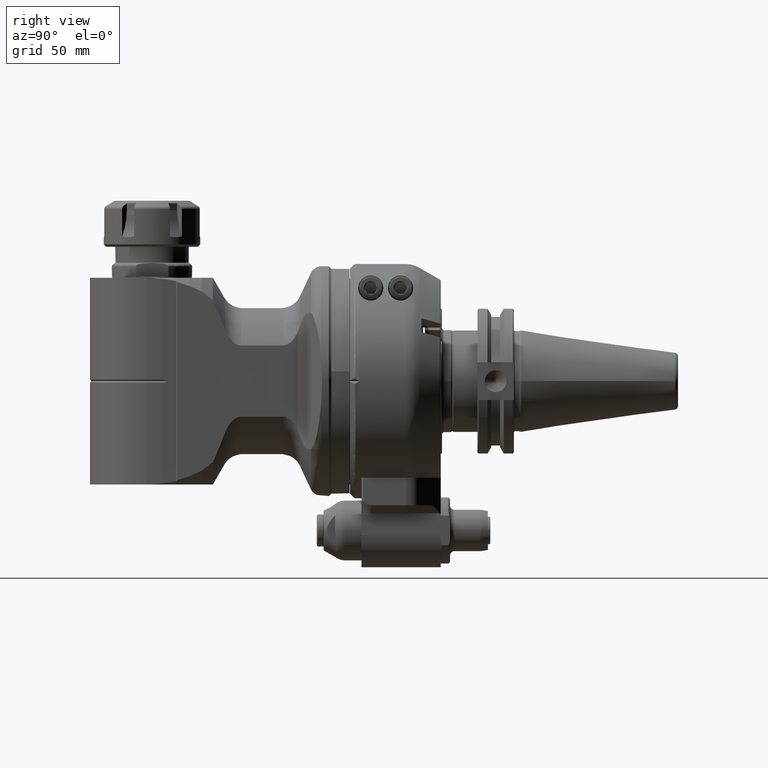
[diagram: clean part render]
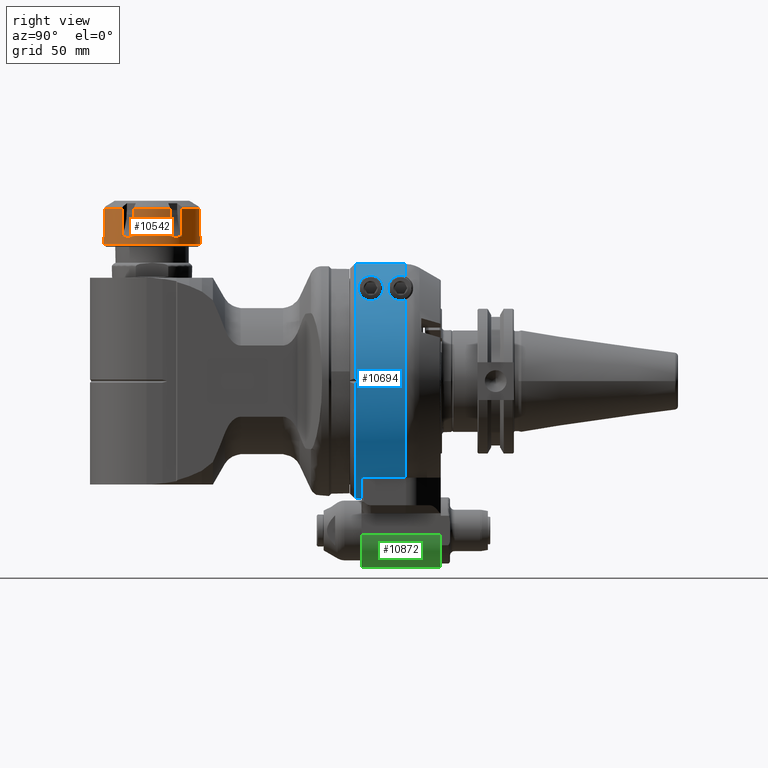
[diagram: same view with three faces highlighted in distinct colors, each labeled with its STEP entity id]
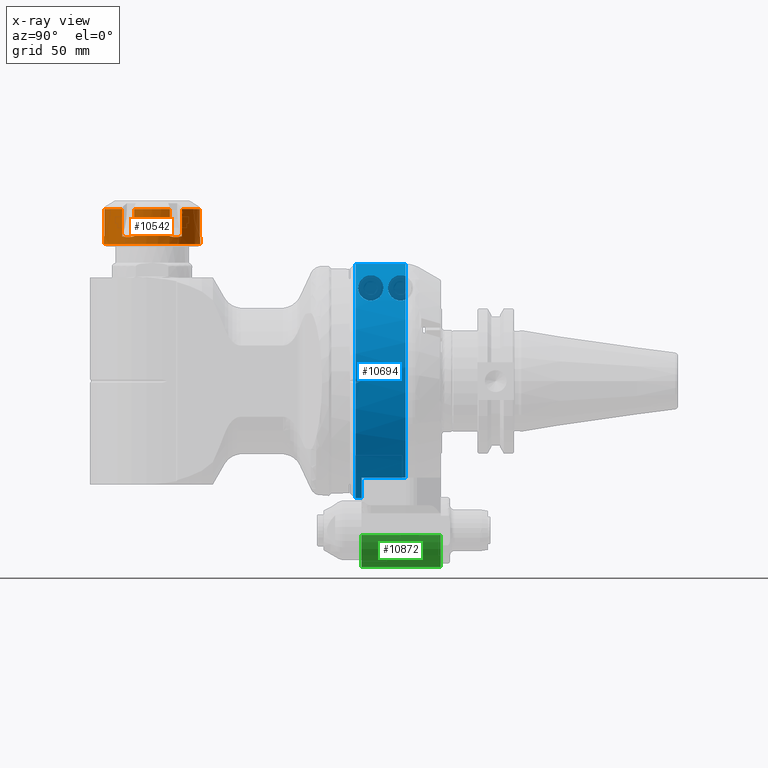
[diagram: x-ray of the same camera — body ghosted, the three highlighted faces saturated]
A machine part, right view with three faces highlighted in distinct colors.
The next image is the same camera in x-ray (body ghosted, the three faces saturated) — at least one of them is partly hidden behind the body in this view.
Their STEP definitions:

[orange] entity #10542 — the highlighted cylindrical surface (bore or boss wall) has radius 21 mm, axis along (0, -0, 1).
#488=B_SPLINE_CURVE_WITH_KNOTS('',3,(#16755,#16756,#16757,#16758,#16759,
#16760),.UNSPECIFIED.,.F.,.F.,(4,2,4),(2.87463116985803,2.88765206159068,
3.16316369067814),.UNSPECIFIED.);
#489=B_SPLINE_CURVE_WITH_KNOTS('',3,(#16768,#16769,#16770,#16771,#16772,
#16773,#16774,#16775,#16776,#16777),.UNSPECIFIED.,.F.,.F.,(4,2,2,2,4),(2.87463116985782,
2.8876520615906,3.16316369067809,3.43867531976558,3.45169621149917),
 .UNSPECIFIED.);
#490=B_SPLINE_CURVE_WITH_KNOTS('',3,(#16785,#16786,#16787,#16788,#16789,
#16790,#16791,#16792,#16793,#16794),.UNSPECIFIED.,.F.,.F.,(4,2,2,2,4),(-3.45169621149572,
-3.43867531976558,-3.16316369067809,-2.8876520615906,-2.87463116985796),
 .UNSPECIFIED.);
#491=B_SPLINE_CURVE_WITH_KNOTS('',3,(#16802,#16803,#16804,#16805,#16806,
#16807,#16808,#16809,#16810,#16811),.UNSPECIFIED.,.F.,.F.,(4,2,2,2,4),(2.87463116985816,
2.88765206159068,3.16316369067813,3.43867531976559,3.45169621149592),
 .UNSPECIFIED.);
#492=B_SPLINE_CURVE_WITH_KNOTS('',3,(#16819,#16820,#16821,#16822,#16823,
#16824,#16825,#16826,#16827,#16828),.UNSPECIFIED.,.F.,.F.,(4,2,2,2,4),(2.87463116985782,
2.8876520615906,3.16316369067809,3.43867531976558,3.45169621149847),
 .UNSPECIFIED.);
#493=B_SPLINE_CURVE_WITH_KNOTS('',3,(#16836,#16837,#16838,#16839,#16840,
#16841,#16842,#16843,#16844,#16845),.UNSPECIFIED.,.F.,.F.,(4,2,2,2,4),(2.87463116985701,
2.8876520615906,3.16316369067809,3.43867531976558,3.45169621149836),
 .UNSPECIFIED.);
#494=B_SPLINE_CURVE_WITH_KNOTS('',3,(#16852,#16853,#16854,#16855,#16856,
#16857),.UNSPECIFIED.,.F.,.F.,(4,2,4),(3.16316369067814,3.43867531976559,
3.45169621149824),.UNSPECIFIED.);
#637=CYLINDRICAL_SURFACE('',#11416,21.);
#884=CIRCLE('',#11415,21.);
#885=CIRCLE('',#11417,21.);
#886=CIRCLE('',#11418,21.);
#887=CIRCLE('',#11419,21.);
#888=CIRCLE('',#11420,21.);
#889=CIRCLE('',#11421,21.);
#890=CIRCLE('',#11422,21.);
#1480=FACE_OUTER_BOUND('',#2138,.T.);
#2138=EDGE_LOOP('',(#7274,#7275,#7276,#7277,#7278,#7279,#7280,#7281,#7282,
#7283,#7284,#7285,#7286,#7287,#7288,#7289,#7290,#7291,#7292,#7293,#7294,
#7295,#7296,#7297,#7298,#7299,#7300,#7301));
#2849=LINE('',#16762,#3538);
#2850=LINE('',#16766,#3539);
#2851=LINE('',#16779,#3540);
#2852=LINE('',#16783,#3541);
#2853=LINE('',#16796,#3542);
#2854=LINE('',#16800,#3543);
#2855=LINE('',#16813,#3544);
#2856=LINE('',#16817,#3545);
#2857=LINE('',#16830,#3546);
#2858=LINE('',#16834,#3547);
#2859=LINE('',#16847,#3548);
#2860=LINE('',#16851,#3549);
#2861=LINE('',#16858,#3550);
#3538=VECTOR('',#12979,11.85891834632);
#3539=VECTOR('',#12982,11.85891834642);
#3540=VECTOR('',#12983,11.85891834632);
#3541=VECTOR('',#12986,11.85891834642);
#3542=VECTOR('',#12987,11.85891834632);
#3543=VECTOR('',#12990,11.85891834642);
#3544=VECTOR('',#12991,11.85891834632);
#3545=VECTOR('',#12994,11.85891834642);
#3546=VECTOR('',#12995,11.85891834632);
#3547=VECTOR('',#12998,11.85891834642);
#3548=VECTOR('',#12999,11.85891834632);
#3549=VECTOR('',#13002,11.85891834642);
#3550=VECTOR('',#13003,21.);
#4329=VERTEX_POINT('',#16749);
#4330=VERTEX_POINT('',#16753);
#4331=VERTEX_POINT('',#16754);
#4332=VERTEX_POINT('',#16761);
#4333=VERTEX_POINT('',#16763);
#4334=VERTEX_POINT('',#16765);
#4335=VERTEX_POINT('',#16767);
#4336=VERTEX_POINT('',#16778);
#4337=VERTEX_POINT('',#16780);
#4338=VERTEX_POINT('',#16782);
#4339=VERTEX_POINT('',#16784);
#4340=VERTEX_POINT('',#16795);
#4341=VERTEX_POINT('',#16797);
#4342=VERTEX_POINT('',#16799);
#4343=VERTEX_POINT('',#16801);
#4344=VERTEX_POINT('',#16812);
#4345=VERTEX_POINT('',#16814);
#4346=VERTEX_POINT('',#16816);
#4347=VERTEX_POINT('',#16818);
#4348=VERTEX_POINT('',#16829);
#4349=VERTEX_POINT('',#16831);
#4350=VERTEX_POINT('',#16833);
#4351=VERTEX_POINT('',#16835);
#4352=VERTEX_POINT('',#16846);
#4353=VERTEX_POINT('',#16848);
#4354=VERTEX_POINT('',#16850);
#5451=EDGE_CURVE('',#4329,#4329,#884,.T.);
#5453=EDGE_CURVE('',#4330,#4331,#488,.T.);
#5454=EDGE_CURVE('',#4330,#4332,#2849,.T.);
#5455=EDGE_CURVE('',#4333,#4332,#885,.T.);
#5456=EDGE_CURVE('',#4333,#4334,#2850,.T.);
#5457=EDGE_CURVE('',#4335,#4334,#489,.T.);
#5458=EDGE_CURVE('',#4335,#4336,#2851,.T.);
#5459=EDGE_CURVE('',#4337,#4336,#886,.T.);
#5460=EDGE_CURVE('',#4337,#4338,#2852,.T.);
#5461=EDGE_CURVE('',#4338,#4339,#490,.T.);
#5462=EDGE_CURVE('',#4339,#4340,#2853,.T.);
#5463=EDGE_CURVE('',#4341,#4340,#887,.T.);
#5464=EDGE_CURVE('',#4341,#4342,#2854,.T.);
#5465=EDGE_CURVE('',#4343,#4342,#491,.T.);
#5466=EDGE_CURVE('',#4343,#4344,#2855,.T.);
#5467=EDGE_CURVE('',#4345,#4344,#888,.T.);
#5468=EDGE_CURVE('',#4345,#4346,#2856,.T.);
#5469=EDGE_CURVE('',#4347,#4346,#492,.T.);
#5470=EDGE_CURVE('',#4347,#4348,#2857,.T.);
#5471=EDGE_CURVE('',#4349,#4348,#889,.T.);
#5472=EDGE_CURVE('',#4349,#4350,#2858,.T.);
#5473=EDGE_CURVE('',#4351,#4350,#493,.T.);
#5474=EDGE_CURVE('',#4351,#4352,#2859,.T.);
#5475=EDGE_CURVE('',#4353,#4352,#890,.T.);
#5476=EDGE_CURVE('',#4353,#4354,#2860,.T.);
#5477=EDGE_CURVE('',#4331,#4354,#494,.T.);
#5478=EDGE_CURVE('',#4331,#4329,#2861,.T.);
#7274=ORIENTED_EDGE('',*,*,#5453,.F.);
#7275=ORIENTED_EDGE('',*,*,#5454,.T.);
#7276=ORIENTED_EDGE('',*,*,#5455,.F.);
#7277=ORIENTED_EDGE('',*,*,#5456,.T.);
#7278=ORIENTED_EDGE('',*,*,#5457,.F.);
#7279=ORIENTED_EDGE('',*,*,#5458,.T.);
#7280=ORIENTED_EDGE('',*,*,#5459,.F.);
#7281=ORIENTED_EDGE('',*,*,#5460,.T.);
#7282=ORIENTED_EDGE('',*,*,#5461,.T.);
#7283=ORIENTED_EDGE('',*,*,#5462,.T.);
#7284=ORIENTED_EDGE('',*,*,#5463,.F.);
#7285=ORIENTED_EDGE('',*,*,#5464,.T.);
#7286=ORIENTED_EDGE('',*,*,#5465,.F.);
#7287=ORIENTED_EDGE('',*,*,#5466,.T.);
#7288=ORIENTED_EDGE('',*,*,#5467,.F.);
#7289=ORIENTED_EDGE('',*,*,#5468,.T.);
#7290=ORIENTED_EDGE('',*,*,#5469,.F.);
#7291=ORIENTED_EDGE('',*,*,#5470,.T.);
#7292=ORIENTED_EDGE('',*,*,#5471,.F.);
#7293=ORIENTED_EDGE('',*,*,#5472,.T.);
#7294=ORIENTED_EDGE('',*,*,#5473,.F.);
#7295=ORIENTED_EDGE('',*,*,#5474,.T.);
#7296=ORIENTED_EDGE('',*,*,#5475,.F.);
#7297=ORIENTED_EDGE('',*,*,#5476,.T.);
#7298=ORIENTED_EDGE('',*,*,#5477,.F.);
#7299=ORIENTED_EDGE('',*,*,#5478,.T.);
#7300=ORIENTED_EDGE('',*,*,#5451,.F.);
#7301=ORIENTED_EDGE('',*,*,#5478,.F.);
#10542=ADVANCED_FACE('',(#1480),#637,.T.);
#11415=AXIS2_PLACEMENT_3D('',#16750,#12974,#12975);
#11416=AXIS2_PLACEMENT_3D('',#16752,#12977,#12978);
#11417=AXIS2_PLACEMENT_3D('',#16764,#12980,#12981);
#11418=AXIS2_PLACEMENT_3D('',#16781,#12984,#12985);
#11419=AXIS2_PLACEMENT_3D('',#16798,#12988,#12989);
#11420=AXIS2_PLACEMENT_3D('',#16815,#12992,#12993);
#11421=AXIS2_PLACEMENT_3D('',#16832,#12996,#12997);
#11422=AXIS2_PLACEMENT_3D('',#16849,#13000,#13001);
#12974=DIRECTION('center_axis',(0.,1.,0.));
#12975=DIRECTION('ref_axis',(1.,0.,0.));
#12977=DIRECTION('center_axis',(0.,-1.,0.));
#12978=DIRECTION('ref_axis',(-1.,0.,0.));
#12979=DIRECTION('',(-1.366092075366E-13,-1.,3.374037719038E-14));
#12980=DIRECTION('center_axis',(0.,-1.,0.));
#12981=DIRECTION('ref_axis',(0.618448856227896,0.,-0.785825051923395));
#12982=DIRECTION('',(1.497907977363E-12,1.,-1.611449402047E-12));
#12983=DIRECTION('',(-4.313974974841E-14,-1.,1.330142283909E-13));
#12984=DIRECTION('center_axis',(0.,-1.,0.));
#12985=DIRECTION('ref_axis',(-0.3713200297819,0.,-0.928504946396501));
#12986=DIRECTION('',(-6.506912253664E-13,1.,-2.101265310645E-12));
#12987=DIRECTION('',(9.346945778822E-14,-1.,1.024569056525E-13));
#12988=DIRECTION('center_axis',(0.,-1.,0.));
#12989=DIRECTION('ref_axis',(-0.989768886009832,0.,-0.142679894473105));
#12990=DIRECTION('',(-2.141409244438E-12,1.,-4.877188374293E-13));
#12991=DIRECTION('',(1.342125547728E-13,-1.,-3.029518884242E-14));
#12992=DIRECTION('center_axis',(0.,-1.,0.));
#12993=DIRECTION('ref_axis',(-0.618448856227896,0.,0.785825051923395));
#12994=DIRECTION('',(-1.494312998217E-12,1.,1.614145636406E-12));
#12995=DIRECTION('',(3.954477060271E-14,-1.,-1.333138099864E-13));
#12996=DIRECTION('center_axis',(0.,-1.,0.));
#12997=DIRECTION('ref_axis',(0.3713200297819,0.,0.928504946396501));
#12998=DIRECTION('',(6.518895517483E-13,1.,2.10486028979E-12));
#12999=DIRECTION('',(-9.826276331582E-14,-1.,-1.006594160796E-13));
#13000=DIRECTION('center_axis',(0.,-1.,0.));
#13001=DIRECTION('ref_axis',(0.989768886009832,0.,0.142679894473105));
#13002=DIRECTION('',(2.140210918056E-12,1.,4.847230214746E-13));
#13003=DIRECTION('',(0.,1.,0.));
#16749=CARTESIAN_POINT('',(111.,-59.50000042753,0.));
#16750=CARTESIAN_POINT('Origin',(90.,-59.50000042753,0.));
#16752=CARTESIAN_POINT('Origin',(90.,-68.50000042753,0.));
#16753=CARTESIAN_POINT('',(110.7851466062,-63.03264289878,-2.996277783935));
#16754=CARTESIAN_POINT('',(111.,-62.6256583404921,1.70221277333915E-15));
#16755=CARTESIAN_POINT('Ctrl Pts',(110.785146606206,-63.0326428987769,-2.99627778393676));
#16756=CARTESIAN_POINT('Ctrl Pts',(110.791588087868,-63.0201642985069,-2.95159329526259));
#16757=CARTESIAN_POINT('Ctrl Pts',(110.797897483794,-63.0079673405085,-2.90680446272994));
#16758=CARTESIAN_POINT('Ctrl Pts',(110.934713406163,-62.7439926974718,-1.91225557974211));
#16759=CARTESIAN_POINT('Ctrl Pts',(111.,-62.6256583404921,-0.91837209695819));
#16760=CARTESIAN_POINT('Ctrl Pts',(111.,-62.6256583404921,-8.32667268468867E-16));
#16761=CARTESIAN_POINT('',(110.7851466062,-74.8915612451,-2.996277783935));
#16762=CARTESIAN_POINT('',(110.7851466062,-63.03264289878,-2.996277783936));
#16763=CARTESIAN_POINT('',(102.9874259808,-74.8915612451,-16.50232609039));
#16764=CARTESIAN_POINT('Origin',(90.,-74.8915612451,0.));
#16765=CARTESIAN_POINT('',(102.9874259808,-63.03264289878,-16.50232609039));
#16766=CARTESIAN_POINT('',(102.9874259808,-74.8915612451,-16.50232609039));
#16767=CARTESIAN_POINT('',(97.79772062542,-63.03264289878,-19.49860387433));
#16768=CARTESIAN_POINT('Ctrl Pts',(97.7977206254178,-63.032642898776,-19.4986038743274));
#16769=CARTESIAN_POINT('Ctrl Pts',(97.839639268596,-63.0201642985058,-19.4818401167472));
#16770=CARTESIAN_POINT('Ctrl Pts',(97.8815822333384,-63.0079673405073,-19.4649097976349));
#16771=CARTESIAN_POINT('Ctrl Pts',(98.8112947924964,-62.7439926974704,-19.0861214205547));
#16772=CARTESIAN_POINT('Ctrl Pts',(99.7046664339077,-62.6256583404907,-18.6457195279522));
#16773=CARTESIAN_POINT('Ctrl Pts',(101.295333566093,-62.6256583404907,-17.7273474309938));
#16774=CARTESIAN_POINT('Ctrl Pts',(102.123418613667,-62.7439926974704,-17.1738658408123));
#16775=CARTESIAN_POINT('Ctrl Pts',(102.916315250458,-63.007967340508,-16.5581053349024));
#16776=CARTESIAN_POINT('Ctrl Pts',(102.951948819277,-63.0201642985073,-16.5302468214798));
#16777=CARTESIAN_POINT('Ctrl Pts',(102.987425980796,-63.0326428987783,-16.5023260903836));
#16778=CARTESIAN_POINT('',(97.79772062542,-74.8915612451,-19.49860387433));
#16779=CARTESIAN_POINT('',(97.79772062542,-63.03264289877,-19.49860387433));
#16780=CARTESIAN_POINT('',(82.20227937458,-74.8915612451,-19.49860387433));
#16781=CARTESIAN_POINT('Origin',(90.,-74.8915612451,0.));
#16782=CARTESIAN_POINT('',(82.20227937457,-63.03264289868,-19.49860387435));
#16783=CARTESIAN_POINT('',(82.20227937458,-74.8915612451,-19.49860387433));
#16784=CARTESIAN_POINT('',(77.01257401921,-63.03264289877,-16.50232609039));
#16785=CARTESIAN_POINT('Ctrl Pts',(82.2022793745568,-63.0326428987684,-19.4986038743172));
#16786=CARTESIAN_POINT('Ctrl Pts',(82.160360731387,-63.0201642985008,-19.4818401167404));
#16787=CARTESIAN_POINT('Ctrl Pts',(82.1184177666531,-63.0079673405049,-19.4649097976315));
#16788=CARTESIAN_POINT('Ctrl Pts',(81.1887052075036,-62.7439926974704,-19.0861214205547));
#16789=CARTESIAN_POINT('Ctrl Pts',(80.2953335660923,-62.6256583404907,-18.6457195279522));
#16790=CARTESIAN_POINT('Ctrl Pts',(78.704666433907,-62.6256583404907,-17.7273474309938));
#16791=CARTESIAN_POINT('Ctrl Pts',(77.8765813863328,-62.7439926974704,-17.1738658408123));
#16792=CARTESIAN_POINT('Ctrl Pts',(77.0836847495445,-63.0079673405072,-16.5581053349044));
#16793=CARTESIAN_POINT('Ctrl Pts',(77.0480511807282,-63.0201642985055,-16.5302468214839));
#16794=CARTESIAN_POINT('Ctrl Pts',(77.0125740192122,-63.0326428987755,-16.5023260903897));
#16795=CARTESIAN_POINT('',(77.01257401921,-74.8915612451,-16.50232609039));
#16796=CARTESIAN_POINT('',(77.01257401921,-63.03264289877,-16.50232609039));
#16797=CARTESIAN_POINT('',(69.21485339379,-74.8915612451,-2.996277783935));
#16798=CARTESIAN_POINT('Origin',(90.,-74.8915612451,0.));
#16799=CARTESIAN_POINT('',(69.21485339377,-63.03264289868,-2.996277783941));
#16800=CARTESIAN_POINT('',(69.21485339379,-74.8915612451,-2.996277783935));
#16801=CARTESIAN_POINT('',(69.21485339379,-63.03264289878,2.996277783935));
#16802=CARTESIAN_POINT('Ctrl Pts',(69.2148533937936,-63.0326428987766,2.99627778393545));
#16803=CARTESIAN_POINT('Ctrl Pts',(69.2084119121319,-63.0201642985066,2.95159329526171));
#16804=CARTESIAN_POINT('Ctrl Pts',(69.2021025162062,-63.0079673405084,2.9068044627295));
#16805=CARTESIAN_POINT('Ctrl Pts',(69.0652865938371,-62.7439926974718,1.9122555797421));
#16806=CARTESIAN_POINT('Ctrl Pts',(69.,-62.6256583404921,0.91837209695819));
#16807=CARTESIAN_POINT('Ctrl Pts',(69.,-62.6256583404921,-0.91837209695819));
#16808=CARTESIAN_POINT('Ctrl Pts',(69.0652865938371,-62.7439926974718,-1.9122555797421));
#16809=CARTESIAN_POINT('Ctrl Pts',(69.2021025162052,-63.0079673405064,-2.90680446272194));
#16810=CARTESIAN_POINT('Ctrl Pts',(69.2084119121297,-63.0201642985025,-2.95159329524663));
#16811=CARTESIAN_POINT('Ctrl Pts',(69.2148533937903,-63.0326428987702,-2.99627778391287));
#16812=CARTESIAN_POINT('',(69.21485339379,-74.8915612451,2.996277783935));
#16813=CARTESIAN_POINT('',(69.21485339379,-63.03264289877,2.996277783936));
#16814=CARTESIAN_POINT('',(77.01257401921,-74.8915612451,16.50232609039));
#16815=CARTESIAN_POINT('Origin',(90.,-74.8915612451,0.));
#16816=CARTESIAN_POINT('',(77.01257401921,-63.03264289878,16.50232609039));
#16817=CARTESIAN_POINT('',(77.01257401921,-74.8915612451,16.50232609039));
#16818=CARTESIAN_POINT('',(82.20227937458,-63.03264289878,19.49860387433));
#16819=CARTESIAN_POINT('Ctrl Pts',(82.2022793745823,-63.032642898776,19.4986038743274));
#16820=CARTESIAN_POINT('Ctrl Pts',(82.160360731404,-63.0201642985058,19.4818401167472));
#16821=CARTESIAN_POINT('Ctrl Pts',(82.1184177666616,-63.0079673405073,19.4649097976349));
#16822=CARTESIAN_POINT('Ctrl Pts',(81.1887052075036,-62.7439926974704,19.0861214205547));
#16823=CARTESIAN_POINT('Ctrl Pts',(80.2953335660923,-62.6256583404907,18.6457195279522));
#16824=CARTESIAN_POINT('Ctrl Pts',(78.704666433907,-62.6256583404907,17.7273474309938));
#16825=CARTESIAN_POINT('Ctrl Pts',(77.8765813863328,-62.7439926974704,17.1738658408123));
#16826=CARTESIAN_POINT('Ctrl Pts',(77.0836847495438,-63.0079673405074,16.5581053349039));
#16827=CARTESIAN_POINT('Ctrl Pts',(77.0480511807269,-63.020164298506,16.5302468214828));
#16828=CARTESIAN_POINT('Ctrl Pts',(77.0125740192102,-63.0326428987762,16.5023260903881));
#16829=CARTESIAN_POINT('',(82.20227937458,-74.8915612451,19.49860387433));
#16830=CARTESIAN_POINT('',(82.20227937458,-63.03264289877,19.49860387433));
#16831=CARTESIAN_POINT('',(97.79772062542,-74.8915612451,19.49860387433));
#16832=CARTESIAN_POINT('Origin',(90.,-74.8915612451,0.));
#16833=CARTESIAN_POINT('',(97.79772062542,-63.03264289878,19.49860387433));
#16834=CARTESIAN_POINT('',(97.79772062542,-74.8915612451,19.49860387433));
#16835=CARTESIAN_POINT('',(102.9874259808,-63.03264289878,16.50232609039));
#16836=CARTESIAN_POINT('Ctrl Pts',(102.987425980796,-63.0326428987783,16.5023260903836));
#16837=CARTESIAN_POINT('Ctrl Pts',(102.951948819277,-63.0201642985073,16.5302468214798));
#16838=CARTESIAN_POINT('Ctrl Pts',(102.916315250458,-63.0079673405081,16.5581053349024));
#16839=CARTESIAN_POINT('Ctrl Pts',(102.123418613667,-62.7439926974705,17.1738658408123));
#16840=CARTESIAN_POINT('Ctrl Pts',(101.295333566093,-62.6256583404907,17.7273474309938));
#16841=CARTESIAN_POINT('Ctrl Pts',(99.7046664339077,-62.6256583404907,18.6457195279522));
#16842=CARTESIAN_POINT('Ctrl Pts',(98.8112947924964,-62.7439926974704,19.0861214205547));
#16843=CARTESIAN_POINT('Ctrl Pts',(97.8815822333384,-63.0079673405073,19.4649097976349));
#16844=CARTESIAN_POINT('Ctrl Pts',(97.839639268596,-63.0201642985058,19.4818401167472));
#16845=CARTESIAN_POINT('Ctrl Pts',(97.7977206254178,-63.032642898776,19.4986038743274));
#16846=CARTESIAN_POINT('',(102.9874259808,-74.8915612451,16.50232609039));
#16847=CARTESIAN_POINT('',(102.9874259808,-63.03264289877,16.50232609039));
#16848=CARTESIAN_POINT('',(110.7851466062,-74.8915612451,2.996277783935));
#16849=CARTESIAN_POINT('Origin',(90.,-74.8915612451,0.));
#16850=CARTESIAN_POINT('',(110.7851466062,-63.03264289878,2.996277783935));
#16851=CARTESIAN_POINT('',(110.7851466062,-74.8915612451,2.996277783935));
#16852=CARTESIAN_POINT('Ctrl Pts',(111.,-62.6256583404921,1.11022302462516E-15));
#16853=CARTESIAN_POINT('Ctrl Pts',(111.,-62.6256583404921,0.91837209695819));
#16854=CARTESIAN_POINT('Ctrl Pts',(110.934713406163,-62.7439926974718,1.9122555797421));
#16855=CARTESIAN_POINT('Ctrl Pts',(110.797897483794,-63.0079673405085,2.90680446272994));
#16856=CARTESIAN_POINT('Ctrl Pts',(110.791588087868,-63.0201642985069,2.9515932952626));
#16857=CARTESIAN_POINT('Ctrl Pts',(110.785146606206,-63.0326428987769,2.99627778393676));
#16858=CARTESIAN_POINT('',(111.,-68.50000042753,2.57175827820944E-15));

[blue] entity #10694 — the highlighted cylindrical surface (partial cylindrical patch) has radius 51 mm, axis along (0, -1, 0).
#61=ELLIPSE('',#11726,144.249783362042,51.);
#62=ELLIPSE('',#11727,144.249783362042,51.);
#300=FACE_BOUND('',#2315,.T.);
#511=B_SPLINE_CURVE_WITH_KNOTS('',3,(#17837,#17838,#17839,#17840,#17841,
#17842),.UNSPECIFIED.,.F.,.F.,(4,2,4),(-0.220144328878827,-0.201175489980687,
0.),.UNSPECIFIED.);
#512=B_SPLINE_CURVE_WITH_KNOTS('',3,(#17844,#17845,#17846,#17847,#17848,
#17849,#17850,#17851,#17852,#17853,#17854,#17855,#17856,#17857,#17858,#17859,
#17860,#17861,#17862,#17863,#17864,#17865,#17866,#17867,#17868,#17869),
 .UNSPECIFIED.,.F.,.F.,(4,2,2,2,2,2,2,2,2,2,2,2,4),(0.,0.201175489980687,
0.402350979961374,0.726790310303929,1.05122964064648,1.44743687444551,1.84364410824453,
2.06341028648597,2.1732933756067,2.28317646472742,2.39305955384814,2.50294264296886,
2.52975105249028),.UNSPECIFIED.);
#513=B_SPLINE_CURVE_WITH_KNOTS('',3,(#17891,#17892,#17893,#17894,#17895,
#17896,#17897,#17898,#17899,#17900,#17901,#17902,#17903,#17904,#17905,#17906,
#17907,#17908,#17909,#17910,#17911,#17912,#17913),.UNSPECIFIED.,.F.,.F.,
(4,2,2,2,2,3,2,2,2,2,4),(-1.23194682408093,-0.835739590281912,-0.439532356482891,
-0.219766178241446,-0.109883089120723,0.,0.0949450193758139,0.189890038751628,
0.520032016318137,0.865269466584616,1.2105069168511),.UNSPECIFIED.);
#514=B_SPLINE_CURVE_WITH_KNOTS('',3,(#17914,#17915,#17916,#17917,#17918,
#17919,#17920,#17921,#17922,#17923,#17924,#17925,#17926,#17927,#17928,#17929,
#17930,#17931),.UNSPECIFIED.,.F.,.F.,(4,2,2,2,2,2,2,2,4),(1.2105069168511,
1.53494624719365,1.8593855775362,2.06056106751689,2.26173655749758,2.46291204747827,
2.66408753745895,2.98852686780151,3.31296619814406),.UNSPECIFIED.);
#682=CYLINDRICAL_SURFACE('',#11720,51.);
#1021=CIRCLE('',#11717,51.);
#1024=CIRCLE('',#11721,51.);
#1025=CIRCLE('',#11722,51.);
#1026=CIRCLE('',#11723,51.);
#1027=CIRCLE('',#11724,51.);
#1028=CIRCLE('',#11725,51.);
#1029=CIRCLE('',#11728,51.);
#1030=CIRCLE('',#11729,51.);
#1632=FACE_OUTER_BOUND('',#2314,.T.);
#2314=EDGE_LOOP('',(#7983,#7984,#7985,#7986,#7987,#7988,#7989,#7990,#7991,
#7992,#7993,#7994,#7995,#7996,#7997,#7998,#7999,#8000));
#2315=EDGE_LOOP('',(#8001,#8002));
#3003=LINE('',#17831,#3692);
#3004=LINE('',#17833,#3693);
#3005=LINE('',#17873,#3694);
#3006=LINE('',#17883,#3695);
#3007=LINE('',#17887,#3696);
#3008=LINE('',#17888,#3697);
#3692=VECTOR('',#13745,0.6348591411298);
#3693=VECTOR('',#13746,18.52539489667);
#3694=VECTOR('',#13751,21.74606856517);
#3695=VECTOR('',#13760,21.74606325158);
#3696=VECTOR('',#13763,18.52539489667);
#3697=VECTOR('',#13764,0.6348591411298);
#4540=VERTEX_POINT('',#17705);
#4541=VERTEX_POINT('',#17706);
#4556=VERTEX_POINT('',#17826);
#4557=VERTEX_POINT('',#17828);
#4558=VERTEX_POINT('',#17830);
#4559=VERTEX_POINT('',#17832);
#4560=VERTEX_POINT('',#17834);
#4561=VERTEX_POINT('',#17836);
#4562=VERTEX_POINT('',#17843);
#4563=VERTEX_POINT('',#17870);
#4564=VERTEX_POINT('',#17872);
#4565=VERTEX_POINT('',#17874);
#4566=VERTEX_POINT('',#17876);
#4567=VERTEX_POINT('',#17878);
#4568=VERTEX_POINT('',#17880);
#4569=VERTEX_POINT('',#17882);
#4570=VERTEX_POINT('',#17884);
#4571=VERTEX_POINT('',#17886);
#4572=VERTEX_POINT('',#17889);
#4573=VERTEX_POINT('',#17890);
#5786=EDGE_CURVE('',#4540,#4541,#1021,.T.);
#5802=EDGE_CURVE('',#4541,#4556,#1024,.T.);
#5803=EDGE_CURVE('',#4557,#4540,#1025,.T.);
#5804=EDGE_CURVE('',#4557,#4558,#3003,.T.);
#5805=EDGE_CURVE('',#4559,#4558,#3004,.T.);
#5806=EDGE_CURVE('',#4560,#4559,#1026,.T.);
#5807=EDGE_CURVE('',#4560,#4561,#511,.T.);
#5808=EDGE_CURVE('',#4561,#4562,#512,.T.);
#5809=EDGE_CURVE('',#4563,#4562,#1027,.T.);
#5810=EDGE_CURVE('',#4563,#4564,#3005,.T.);
#5811=EDGE_CURVE('',#4565,#4564,#1028,.T.);
#5812=EDGE_CURVE('',#4566,#4565,#61,.T.);
#5813=EDGE_CURVE('',#4567,#4566,#62,.T.);
#5814=EDGE_CURVE('',#4568,#4567,#1029,.T.);
#5815=EDGE_CURVE('',#4568,#4569,#3006,.T.);
#5816=EDGE_CURVE('',#4570,#4569,#1030,.T.);
#5817=EDGE_CURVE('',#4570,#4571,#3007,.T.);
#5818=EDGE_CURVE('',#4571,#4556,#3008,.T.);
#5819=EDGE_CURVE('',#4572,#4573,#513,.T.);
#5820=EDGE_CURVE('',#4573,#4572,#514,.T.);
#7983=ORIENTED_EDGE('',*,*,#5802,.F.);
#7984=ORIENTED_EDGE('',*,*,#5786,.F.);
#7985=ORIENTED_EDGE('',*,*,#5803,.F.);
#7986=ORIENTED_EDGE('',*,*,#5804,.T.);
#7987=ORIENTED_EDGE('',*,*,#5805,.F.);
#7988=ORIENTED_EDGE('',*,*,#5806,.F.);
#7989=ORIENTED_EDGE('',*,*,#5807,.T.);
#7990=ORIENTED_EDGE('',*,*,#5808,.T.);
#7991=ORIENTED_EDGE('',*,*,#5809,.F.);
#7992=ORIENTED_EDGE('',*,*,#5810,.T.);
#7993=ORIENTED_EDGE('',*,*,#5811,.F.);
#7994=ORIENTED_EDGE('',*,*,#5812,.F.);
#7995=ORIENTED_EDGE('',*,*,#5813,.F.);
#7996=ORIENTED_EDGE('',*,*,#5814,.F.);
#7997=ORIENTED_EDGE('',*,*,#5815,.T.);
#7998=ORIENTED_EDGE('',*,*,#5816,.F.);
#7999=ORIENTED_EDGE('',*,*,#5817,.T.);
#8000=ORIENTED_EDGE('',*,*,#5818,.T.);
#8001=ORIENTED_EDGE('',*,*,#5819,.T.);
#8002=ORIENTED_EDGE('',*,*,#5820,.T.);
#10694=ADVANCED_FACE('',(#1632,#300),#682,.T.);
#11717=AXIS2_PLACEMENT_3D('',#17707,#13724,#13725);
#11720=AXIS2_PLACEMENT_3D('',#17825,#13739,#13740);
#11721=AXIS2_PLACEMENT_3D('',#17827,#13741,#13742);
#11722=AXIS2_PLACEMENT_3D('',#17829,#13743,#13744);
#11723=AXIS2_PLACEMENT_3D('',#17835,#13747,#13748);
#11724=AXIS2_PLACEMENT_3D('',#17871,#13749,#13750);
#11725=AXIS2_PLACEMENT_3D('',#17875,#13752,#13753);
#11726=AXIS2_PLACEMENT_3D('',#17877,#13754,#13755);
#11727=AXIS2_PLACEMENT_3D('',#17879,#13756,#13757);
#11728=AXIS2_PLACEMENT_3D('',#17881,#13758,#13759);
#11729=AXIS2_PLACEMENT_3D('',#17885,#13761,#13762);
#13724=DIRECTION('center_axis',(0.,1.,0.));
#13725=DIRECTION('ref_axis',(0.54901960784313,0.,-0.835809470037146));
#13739=DIRECTION('center_axis',(0.,-1.,0.));
#13740=DIRECTION('ref_axis',(1.4663902280623E-10,0.,-1.));
#13741=DIRECTION('center_axis',(0.,1.,0.));
#13742=DIRECTION('ref_axis',(-0.54901960784313,0.,-0.835809470037146));
#13743=DIRECTION('center_axis',(0.,1.,0.));
#13744=DIRECTION('ref_axis',(0.567273574176089,0.,-0.823529411764684));
#13745=DIRECTION('',(7.27488584983E-14,1.,2.238426415332E-14));
#13746=DIRECTION('',(4.794383194822E-14,-1.,3.298535638037E-14));
#13747=DIRECTION('center_axis',(0.,1.,0.));
#13748=DIRECTION('ref_axis',(0.719066469693323,0.,0.694941301235422));
#13749=DIRECTION('center_axis',(0.,1.,0.));
#13750=DIRECTION('ref_axis',(0.0294117647058804,0.,0.999567380468613));
#13751=DIRECTION('',(1.273469652131E-9,-1.,-3.747115976057E-11));
#13752=DIRECTION('center_axis',(0.,-1.,0.));
#13753=DIRECTION('ref_axis',(0.999826388474475,0.,0.0186331132687895));
#13754=DIRECTION('center_axis',(0.612372435695813,-0.353553390593307,-0.707106781186515));
#13755=DIRECTION('ref_axis',(-0.23145502494317,-0.935414346693472,0.267261241912441));
#13756=DIRECTION('center_axis',(0.612372435695813,-0.353553390593307,0.707106781186515));
#13757=DIRECTION('ref_axis',(0.23145502494317,0.935414346693472,0.267261241912441));
#13758=DIRECTION('center_axis',(0.,-1.,0.));
#13759=DIRECTION('ref_axis',(0.,0.,-1.));
#13760=DIRECTION('',(4.970251645951E-10,1.,1.462479987387E-11));
#13761=DIRECTION('center_axis',(0.,1.,0.));
#13762=DIRECTION('ref_axis',(-0.567273574176089,0.,-0.823529411764684));
#13763=DIRECTION('',(-4.813560727601E-14,-1.,3.260180572479E-14));
#13764=DIRECTION('',(0.,-1.,2.238426415332E-14));
#17705=CARTESIAN_POINT('',(28.,5.,-42.62628297189));
#17706=CARTESIAN_POINT('',(-28.,5.,-42.62628297189));
#17707=CARTESIAN_POINT('Origin',(0.,5.,0.));
#17825=CARTESIAN_POINT('Origin',(0.,31.,0.));
#17826=CARTESIAN_POINT('',(-28.93095228298,5.,-42.));
#17827=CARTESIAN_POINT('Origin',(0.,5.,0.));
#17828=CARTESIAN_POINT('',(28.93095228298,5.,-42.));
#17829=CARTESIAN_POINT('Origin',(0.,5.,0.));
#17830=CARTESIAN_POINT('',(28.93095228298,5.63485914113,-42.));
#17831=CARTESIAN_POINT('',(28.93095228298,5.,-42.));
#17832=CARTESIAN_POINT('',(28.93095228298,24.1602540378,-42.));
#17833=CARTESIAN_POINT('',(28.93095228298,24.1602540378,-42.));
#17834=CARTESIAN_POINT('',(36.67238995435,24.1602540379,35.44200636301));
#17835=CARTESIAN_POINT('Origin',(0.,24.16025403784,0.));
#17836=CARTESIAN_POINT('',(37.094473715245,22.,35.0000002827));
#17837=CARTESIAN_POINT('Ctrl Pts',(36.6723899543635,24.1602540379089,35.4420063630023));
#17838=CARTESIAN_POINT('Ctrl Pts',(36.6960098703003,24.1030307589439,35.4175664721268));
#17839=CARTESIAN_POINT('Ctrl Pts',(36.7187524665202,24.0451285760537,35.3939854762379));
#17840=CARTESIAN_POINT('Ctrl Pts',(36.9720249281091,23.365962882206,35.1309085087689));
#17841=CARTESIAN_POINT('Ctrl Pts',(37.094473715245,22.6705849666023,35.0000002827));
#17842=CARTESIAN_POINT('Ctrl Pts',(37.094473715245,22.,35.0000002827));
#17843=CARTESIAN_POINT('',(22.92311419183,24.16025403784,45.55799420242));
#17844=CARTESIAN_POINT('Ctrl Pts',(37.094473715245,22.,35.0000002827));
#17845=CARTESIAN_POINT('Ctrl Pts',(37.094473715245,21.3294150333977,35.0000002827));
#17846=CARTESIAN_POINT('Ctrl Pts',(36.9720249281091,20.634037117794,35.1309085087689));
#17847=CARTESIAN_POINT('Ctrl Pts',(36.509126684777,19.3927469884163,35.611726144206));
#17848=CARTESIAN_POINT('Ctrl Pts',(36.1687494919773,18.8460087579151,35.9595700839234));
#17849=CARTESIAN_POINT('Ctrl Pts',(35.2033968586434,17.735791859391,36.9109847334653));
#17850=CARTESIAN_POINT('Ctrl Pts',(34.4409934800641,17.2408985110096,37.6305186458188));
#17851=CARTESIAN_POINT('Ctrl Pts',(32.7670730175023,16.6228361137413,39.0967633186736));
#17852=CARTESIAN_POINT('Ctrl Pts',(31.8547771083538,16.5,39.8427250661917));
#17853=CARTESIAN_POINT('Ctrl Pts',(29.9471832487812,16.5,41.3026686740521));
#17854=CARTESIAN_POINT('Ctrl Pts',(28.778013547493,16.6813594560049,42.1275628033903));
#17855=CARTESIAN_POINT('Ctrl Pts',(26.456979520871,17.3971650946717,43.6226298537565));
#17856=CARTESIAN_POINT('Ctrl Pts',(25.3037695427295,17.923954492565,44.2943690865695));
#17857=CARTESIAN_POINT('Ctrl Pts',(23.7624895598246,18.9924338611569,45.1302050030023));
#17858=CARTESIAN_POINT('Ctrl Pts',(23.1928172782629,19.474810450432,45.4238805293447));
#17859=CARTESIAN_POINT('Ctrl Pts',(22.5411184273514,20.3289480905375,45.7488459255632));
#17860=CARTESIAN_POINT('Ctrl Pts',(22.3578474169696,20.6350884897769,45.8382767855729));
#17861=CARTESIAN_POINT('Ctrl Pts',(22.0986788135919,21.2875037271628,45.9637780827712));
#17862=CARTESIAN_POINT('Ctrl Pts',(22.0227149550549,21.6337230362643,46.0000002827));
#17863=CARTESIAN_POINT('Ctrl Pts',(22.0227149550549,22.3662769637357,46.0000002827));
#17864=CARTESIAN_POINT('Ctrl Pts',(22.0986788135919,22.7124962728372,45.9637780827712));
#17865=CARTESIAN_POINT('Ctrl Pts',(22.3578474169696,23.3649115102231,45.8382767855729));
#17866=CARTESIAN_POINT('Ctrl Pts',(22.5411184273514,23.6710519094625,45.7488459255632));
#17867=CARTESIAN_POINT('Ctrl Pts',(22.8113501597235,24.0252263780027,45.6140966286168));
#17868=CARTESIAN_POINT('Ctrl Pts',(22.866366168842,24.0933991389679,45.5865477292858));
#17869=CARTESIAN_POINT('Ctrl Pts',(22.9231141918306,24.1602540378421,45.5579942024262));
#17870=CARTESIAN_POINT('',(1.49999997309681,24.16025403784,50.9779364046901));
#17871=CARTESIAN_POINT('Origin',(0.,24.16025403784,0.));
#17872=CARTESIAN_POINT('',(1.49999998660699,2.41421355535176,50.9779364042926));
#17873=CARTESIAN_POINT('',(1.499999945521,24.16027520978,50.9779364055));
#17874=CARTESIAN_POINT('',(50.9911458122,2.414213562364,0.9502887767138));
#17875=CARTESIAN_POINT('Origin',(0.,2.414213562373,0.));
#17876=CARTESIAN_POINT('',(51.,4.330127018922,0.));
#17877=CARTESIAN_POINT('Origin',(0.,-84.0044641670873,0.));
#17878=CARTESIAN_POINT('',(50.9911458122,2.414213562368,-0.9502887767115));
#17879=CARTESIAN_POINT('Origin',(0.,-84.0044641670895,0.));
#17880=CARTESIAN_POINT('',(-1.49999998564002,2.41421355484646,50.9779364043204));
#17881=CARTESIAN_POINT('Origin',(0.,2.414213562373,0.));
#17882=CARTESIAN_POINT('',(-1.49999998023586,24.1602540482335,50.9779364044794));
#17883=CARTESIAN_POINT('',(-1.49999997128,2.414206146768,50.97793640474));
#17884=CARTESIAN_POINT('',(-28.93095228298,24.1602540378,-42.));
#17885=CARTESIAN_POINT('Origin',(0.,24.16025403784,0.));
#17886=CARTESIAN_POINT('',(-28.93095228298,5.63485914113,-42.));
#17887=CARTESIAN_POINT('',(-28.93095228298,24.1602540378,-42.));
#17888=CARTESIAN_POINT('',(-28.93095228298,5.63485914113,-42.));
#17889=CARTESIAN_POINT('',(30.99596711028,3.5,40.5000002827));
#17890=CARTESIAN_POINT('',(30.9959671102758,14.5,40.5000002827));
#17891=CARTESIAN_POINT('Ctrl Pts',(30.9959671102758,3.5,40.5000002827));
#17892=CARTESIAN_POINT('Ctrl Pts',(29.9471832487812,3.5,41.3026686740522));
#17893=CARTESIAN_POINT('Ctrl Pts',(28.778013547493,3.68135945600489,42.1275628033903));
#17894=CARTESIAN_POINT('Ctrl Pts',(26.456979520871,4.39716509467172,43.6226298537565));
#17895=CARTESIAN_POINT('Ctrl Pts',(25.3037695427295,4.92395449256504,44.2943690865695));
#17896=CARTESIAN_POINT('Ctrl Pts',(23.7624895598246,5.99243386115686,45.1302050030023));
#17897=CARTESIAN_POINT('Ctrl Pts',(23.1928172782629,6.47481045043199,45.4238805293447));
#17898=CARTESIAN_POINT('Ctrl Pts',(22.5411184273514,7.32894809053752,45.7488459255632));
#17899=CARTESIAN_POINT('Ctrl Pts',(22.3578474169696,7.63508848977688,45.8382767855729));
#17900=CARTESIAN_POINT('Ctrl Pts',(22.0986788135919,8.28750372716278,45.9637780827712));
#17901=CARTESIAN_POINT('Ctrl Pts',(22.0227149550549,8.63372303626426,46.0000002827));
#17902=CARTESIAN_POINT('Ctrl Pts',(22.0227149550549,9.,46.0000002827));
#17903=CARTESIAN_POINT('Ctrl Pts',(22.0227149550549,9.31648339791938,46.0000002827));
#17904=CARTESIAN_POINT('Ctrl Pts',(22.0845156868871,9.6517064771444,45.9705414133334));
#17905=CARTESIAN_POINT('Ctrl Pts',(22.3158805898878,10.2791236415987,45.8586740383155));
#17906=CARTESIAN_POINT('Ctrl Pts',(22.483313327636,10.5722426936705,45.7770585076701));
#17907=CARTESIAN_POINT('Ctrl Pts',(23.2699641340394,11.6843353101904,45.3869345691662));
#17908=CARTESIAN_POINT('Ctrl Pts',(24.2526245503324,12.4029598465647,44.8752150291874));
#17909=CARTESIAN_POINT('Ctrl Pts',(26.0105214218574,13.3974425277095,43.8807323480425));
#17910=CARTESIAN_POINT('Ctrl Pts',(27.0277734960808,13.8085612622241,43.2664368855585));
#17911=CARTESIAN_POINT('Ctrl Pts',(29.06345429342,14.3611168342614,41.9261341817965));
#17912=CARTESIAN_POINT('Ctrl Pts',(30.0821032649561,14.5,41.1994099986278));
#17913=CARTESIAN_POINT('Ctrl Pts',(30.9959671102758,14.5,40.5000002827));
#17914=CARTESIAN_POINT('Ctrl Pts',(30.9959671102758,14.5,40.5000002827));
#17915=CARTESIAN_POINT('Ctrl Pts',(31.8547771083537,14.5,39.8427250661917));
#17916=CARTESIAN_POINT('Ctrl Pts',(32.7670730175023,14.3771638862587,39.0967633186736));
#17917=CARTESIAN_POINT('Ctrl Pts',(34.4409934800641,13.7591014889904,37.6305186458188));
#17918=CARTESIAN_POINT('Ctrl Pts',(35.2033968586434,13.264208140609,36.9109847334653));
#17919=CARTESIAN_POINT('Ctrl Pts',(36.1687494919773,12.1539912420849,35.9595700839234));
#17920=CARTESIAN_POINT('Ctrl Pts',(36.509126684777,11.6072530115837,35.611726144206));
#17921=CARTESIAN_POINT('Ctrl Pts',(36.9720249281091,10.365962882206,35.1309085087689));
#17922=CARTESIAN_POINT('Ctrl Pts',(37.094473715245,9.67058496660229,35.0000002827));
#17923=CARTESIAN_POINT('Ctrl Pts',(37.094473715245,8.32941503339771,35.0000002827));
#17924=CARTESIAN_POINT('Ctrl Pts',(36.9720249281091,7.63403711779401,35.1309085087689));
#17925=CARTESIAN_POINT('Ctrl Pts',(36.509126684777,6.3927469884163,35.611726144206));
#17926=CARTESIAN_POINT('Ctrl Pts',(36.1687494919773,5.84600875791506,35.9595700839234));
#17927=CARTESIAN_POINT('Ctrl Pts',(35.2033968586434,4.73579185939096,36.9109847334653));
#17928=CARTESIAN_POINT('Ctrl Pts',(34.4409934800641,4.2408985110096,37.6305186458188));
#17929=CARTESIAN_POINT('Ctrl Pts',(32.7670730175023,3.6228361137413,39.0967633186736));
#17930=CARTESIAN_POINT('Ctrl Pts',(31.8547771083537,3.5,39.8427250661917));
#17931=CARTESIAN_POINT('Ctrl Pts',(30.9959671102758,3.5,40.5000002827));

[green] entity #10872 — the highlighted cylindrical surface (edge-blend (fillet) strip) has radius 14 mm, axis along (0, 1, 0).
#740=CYLINDRICAL_SURFACE('',#12092,14.);
#1023=CIRCLE('',#11719,14.);
#1049=CIRCLE('',#11763,14.);
#1810=FACE_OUTER_BOUND('',#2518,.T.);
#2518=EDGE_LOOP('',(#8912,#8913,#8914,#8915));
#3214=LINE('',#20878,#3903);
#3215=LINE('',#20893,#3904);
#3903=VECTOR('',#14688,34.5);
#3904=VECTOR('',#14697,34.5);
#4549=VERTEX_POINT('',#17766);
#4550=VERTEX_POINT('',#17768);
#4619=VERTEX_POINT('',#18160);
#4620=VERTEX_POINT('',#18162);
#5795=EDGE_CURVE('',#4549,#4550,#1023,.T.);
#5881=EDGE_CURVE('',#4619,#4620,#1049,.T.);
#6272=EDGE_CURVE('',#4619,#4550,#3214,.T.);
#6276=EDGE_CURVE('',#4549,#4620,#3215,.T.);
#8912=ORIENTED_EDGE('',*,*,#6276,.T.);
#8913=ORIENTED_EDGE('',*,*,#5881,.F.);
#8914=ORIENTED_EDGE('',*,*,#6272,.T.);
#8915=ORIENTED_EDGE('',*,*,#5795,.F.);
#10872=ADVANCED_FACE('',(#1810),#740,.T.);
#11719=AXIS2_PLACEMENT_3D('',#17769,#13733,#13734);
#11763=AXIS2_PLACEMENT_3D('',#18163,#13870,#13871);
#12092=AXIS2_PLACEMENT_3D('',#20892,#14695,#14696);
#13733=DIRECTION('center_axis',(0.,-1.,0.));
#13734=DIRECTION('ref_axis',(0.,0.,-1.));
#13870=DIRECTION('center_axis',(0.,1.,0.));
#13871=DIRECTION('ref_axis',(1.,0.,0.));
#14688=DIRECTION('',(0.,-1.,0.));
#14695=DIRECTION('center_axis',(0.,1.,0.));
#14696=DIRECTION('ref_axis',(0.,0.,1.));
#14697=DIRECTION('',(0.,1.,0.));
#17766=CARTESIAN_POINT('',(1.,5.,-81.));
#17768=CARTESIAN_POINT('',(15.,5.,-67.));
#17769=CARTESIAN_POINT('Origin',(1.,5.,-67.));
#18160=CARTESIAN_POINT('',(15.,39.5,-67.));
#18162=CARTESIAN_POINT('',(1.,39.5,-81.));
#18163=CARTESIAN_POINT('Origin',(1.,39.5,-67.));
#20878=CARTESIAN_POINT('',(15.,39.5,-67.));
#20892=CARTESIAN_POINT('Origin',(1.,31.,-67.));
#20893=CARTESIAN_POINT('',(1.,5.,-81.));